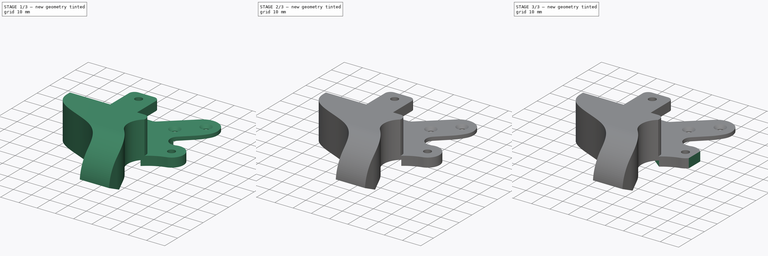
[diagram: build sequence overview — one tinted view per stage of 3, left to right]
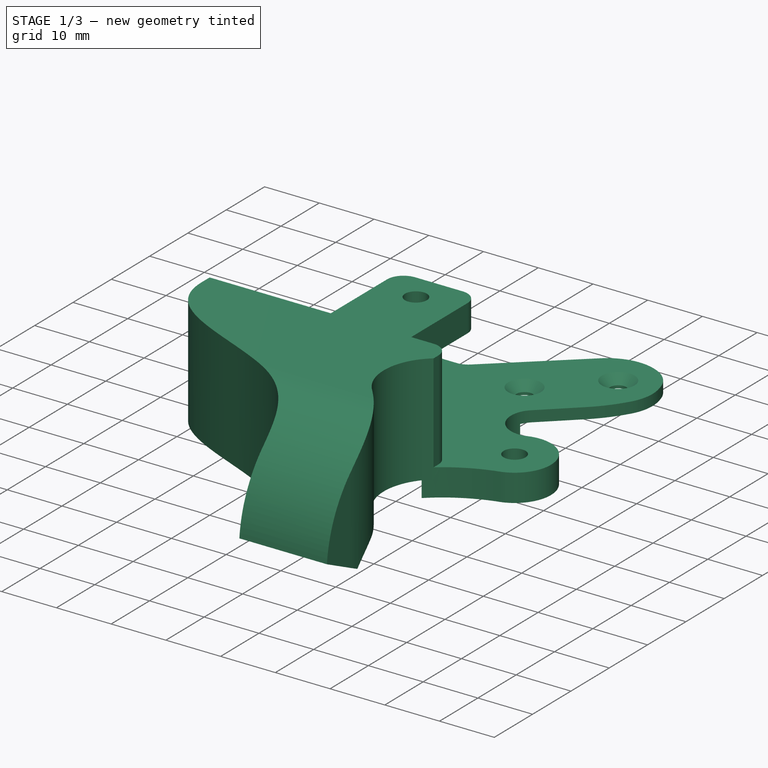
[diagram: stage 1 of 3 — iso view after this stage's code; geometry added in this stage tinted green]
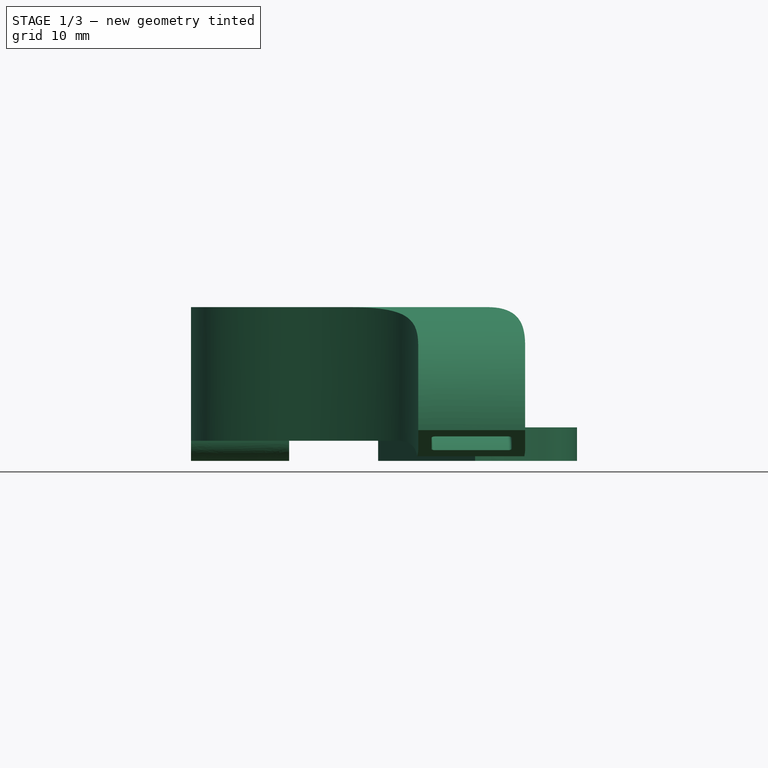
[diagram: stage 1 of 3 — front view after this stage's code; geometry added in this stage tinted green]
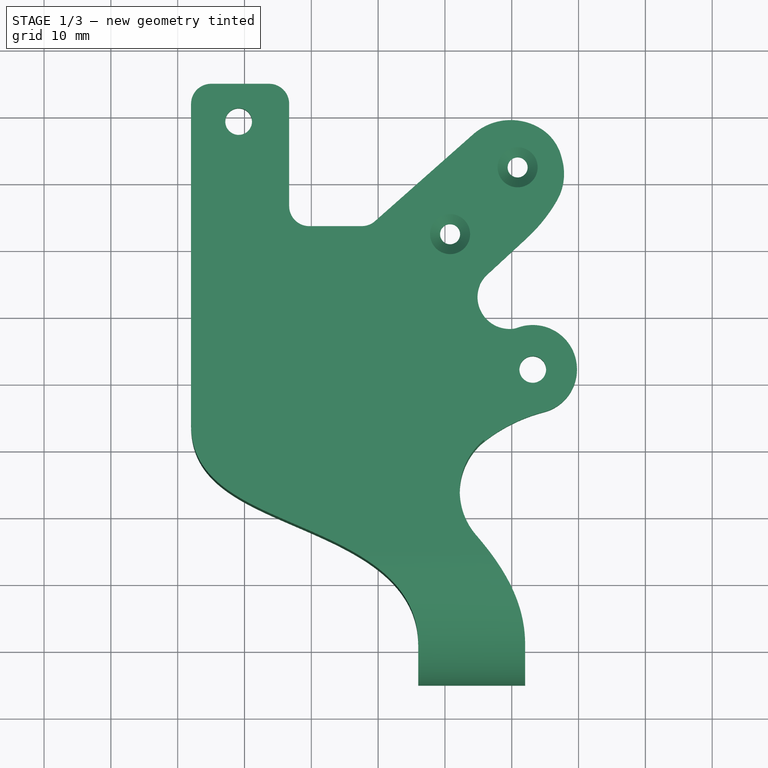
[diagram: stage 1 of 3 — top view after this stage's code; geometry added in this stage tinted green]
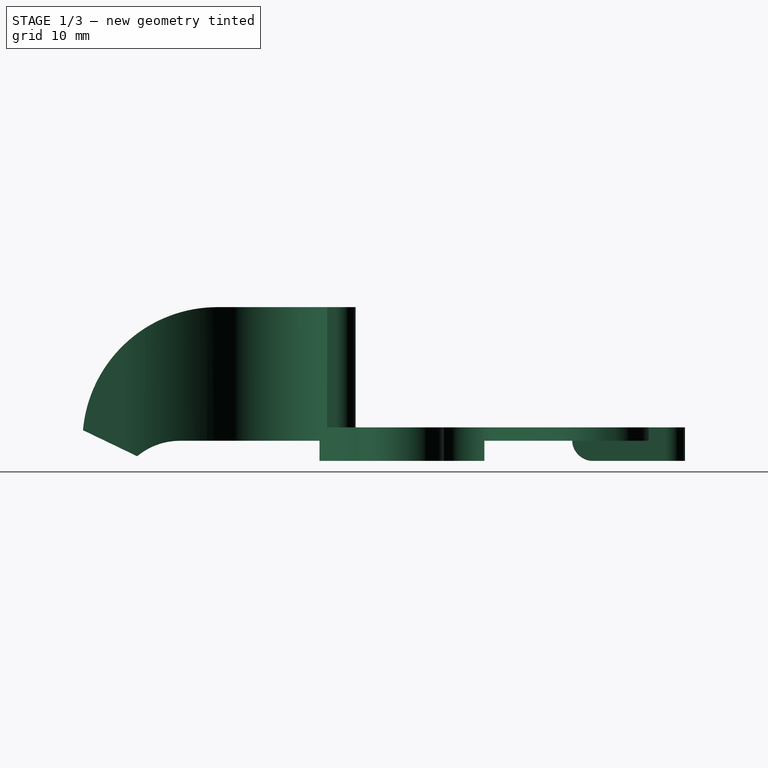
[diagram: stage 1 of 3 — right view after this stage's code; geometry added in this stage tinted green]
FCSTD DOCUMENT  (FreeCAD 0.22R37841 (Git))
Label: RightFanDuct
License: All rights reserved
LicenseURL: http://en.wikipedia.org/wiki/All_rights_reserved
objects: Sketcher::SketchObject×6, PartDesign::Pocket×4, PartDesign::Pad×2, Part::Feature×1, PartDesign::FeatureBase×1, PartDesign::Chamfer×1, PartDesign::Body×1
note: 23 computed .brp shape members not serialized (recipe doc carries the construction recipe); baked Part::Feature solids carry a one-line shape summary decoded from their .brp

FEATURE [Part::Feature] Part__Feature  label="Component2"
  Placement = pos=(80.0475,-0.284578,0.729524) rot=(0,0,1;0rad)
  shape: bbox 55.87 x 90.13 x 23.18 mm, 9816 faces (baked)
FEATURE [PartDesign::FeatureBase] BaseFeature
  BaseFeature = -> Part__Feature
  Suppressed = false
FEATURE [Sketcher::SketchObject] Sketch
  AttachmentSupport = -> [BaseFeature]
  FullyConstrained = false
  MapMode = 5
  Placement = pos=(-1e-16,-4e-16,-3) rot=(1,0,0;3.14159rad)
  sketch-geometry (18):
    g0: Circle CenterX=-20.8995 CenterY=-29.3636 CenterZ=0 NormalX=0 NormalY=0 NormalZ=1 AngleXU=0 Radius=2
    g1: Circle CenterX=-20.8995 CenterY=-29.3636 CenterZ=0 NormalX=0 NormalY=0 NormalZ=1 AngleXU=0 Radius=4
    g2: Circle CenterX=23.1398 CenterY=7.75784 CenterZ=0 NormalX=0 NormalY=0 NormalZ=1 AngleXU=0 Radius=2
    g3: Circle CenterX=23.1398 CenterY=7.75784 CenterZ=0 NormalX=0 NormalY=0 NormalZ=1 AngleXU=0 Radius=4
    g4: LineSegment StartX=-24.4502 StartY=-27.3136 StartZ=0 EndX=-24.4502 EndY=-31.4136 EndZ=0
    g5: LineSegment StartX=-24.4502 StartY=-31.4136 StartZ=0 EndX=-20.8995 EndY=-33.4636 EndZ=0
    g6: LineSegment StartX=-20.8995 StartY=-33.4636 StartZ=0 EndX=-17.3488 EndY=-31.4136 EndZ=0
    g7: LineSegment StartX=-17.3488 StartY=-31.4136 StartZ=0 EndX=-17.3488 EndY=-27.3136 EndZ=0
    g8: LineSegment StartX=-17.3488 StartY=-27.3136 StartZ=0 EndX=-20.8995 EndY=-25.2636 EndZ=0
    g9: LineSegment StartX=-20.8995 StartY=-25.2636 StartZ=0 EndX=-24.4502 EndY=-27.3136 EndZ=0
    g10: Circle CenterX=-20.8995 CenterY=-29.3636 CenterZ=0 NormalX=0 NormalY=0 NormalZ=1 AngleXU=0 Radius=4.1
    g11: LineSegment StartX=19.6757 StartY=9.75784 StartZ=0 EndX=19.6757 EndY=5.75784 EndZ=0
    g12: LineSegment StartX=19.6757 StartY=5.75784 StartZ=0 EndX=23.1398 EndY=3.75784 EndZ=0
    g13: LineSegment StartX=23.1398 StartY=3.75784 StartZ=0 EndX=26.6039 EndY=5.75784 EndZ=0
    g14: LineSegment StartX=26.6039 StartY=5.75784 StartZ=0 EndX=26.6039 EndY=9.75784 EndZ=0
    g15: LineSegment StartX=26.6039 StartY=9.75784 StartZ=0 EndX=23.1398 EndY=11.7578 EndZ=0
    g16: LineSegment StartX=23.1398 StartY=11.7578 StartZ=0 EndX=19.6757 EndY=9.75784 EndZ=0
    g17: Circle CenterX=23.1398 CenterY=7.75784 CenterZ=0 NormalX=0 NormalY=0 NormalZ=1 AngleXU=0 Radius=4
  constraints (36):
    c: Diameter(g0) = 4
    c: Radius(g1) = 4
    c: Coincident(g1,g0)
    c: Diameter(g2) = 4
    c: Radius(g3) = 4
    c: Coincident(g3,g2)
    c: Coincident(g4,g5)
    c: Coincident(g5,g6)
    c: Coincident(g6,g7)
    c: Coincident(g7,g8)
    c: Coincident(g8,g9)
    c: Coincident(g9,g4)
    c: Equal(g4, g5-g9) x5
    c: PointOnObject(g4,g10)
    c: PointOnObject(g5,g10)
    c: PointOnObject(g6,g10)
    c: PointOnObject(g7,g10)
    c: PointOnObject(g8,g10)
    c: PointOnObject(g9,g10)
    c: Radius(g10) = 4.1
    c: Coincident(g10,g0)
    c: Coincident(g11,g12)
    c: Coincident(g12,g13)
    c: Coincident(g13,g14)
    c: Coincident(g14,g15)
    c: Coincident(g15,g16)
    c: Coincident(g16,g11)
    c: Equal(g11, g12-g16) x5
    c: PointOnObject(g11,g17)
    c: PointOnObject(g12,g17)
    c: PointOnObject(g13,g17)
    c: PointOnObject(g14,g17)
    c: PointOnObject(g15,g17)
    c: PointOnObject(g16,g17)
    c: Radius(g17) = 4
    c: Coincident(g17,g2)
FEATURE [Sketcher::SketchObject] Sketch001
  AttachmentSupport = -> [BaseFeature]
  ExternalGeometry = -> [Sketch]
  FullyConstrained = false
  MapMode = 5
  Placement = pos=(-1e-16,-4e-16,-3) rot=(1,0,0;3.14159rad)
  sketch-geometry (2):
    g0: Circle CenterX=-20.8784 CenterY=-29.352 CenterZ=0 NormalX=0 NormalY=0 NormalZ=1 AngleXU=0 Radius=2
    g1: Circle CenterX=23.1398 CenterY=7.75718 CenterZ=0 NormalX=0 NormalY=0 NormalZ=1 AngleXU=0 Radius=2
  constraints (2):
    c: Diameter(g0) = 4
    c: Diameter(g1) = 4
FEATURE [Sketcher::SketchObject] Sketch002
  AttachmentSupport = -> [BaseFeature]
  FullyConstrained = false
  MapMode = 5
  Placement = pos=(-1e-16,-4e-16,-3) rot=(1,0,0;3.14159rad)
  sketch-geometry (8):
    g0: Circle CenterX=23.1396 CenterY=7.72909 CenterZ=0 NormalX=0 NormalY=0 NormalZ=1 AngleXU=0 Radius=1.38906
    g1: ArcOfCircle CenterX=23.1396 CenterY=7.72909 CenterZ=0 NormalX=0 NormalY=0 NormalZ=1 AngleXU=0 Radius=6.62085 StartAngle=4.3611 EndAngle=7.55831
    g2: ArcOfCircle CenterX=19.6808 CenterY=-3.10367 CenterZ=0 NormalX=0 NormalY=0 NormalZ=1 AngleXU=0 Radius=4.80765 StartAngle=1.60785 EndAngle=3.53802
    g3: LineSegment StartX=15.246 StartY=-4.96004 StartZ=0 EndX=0 EndY=-4.96004 EndZ=0
    g4: LineSegment StartX=0 StartY=-4.96004 StartZ=0 EndX=14.5094 EndY=19.7067 EndZ=0
    g5: LineSegment StartX=19.5027 StartY=1.70068 StartZ=0 EndX=19.6413 EndY=1.70583 EndZ=0
    g6: ArcOfCircle CenterX=19.7601 CenterY=-1.4923 CenterZ=0 NormalX=0 NormalY=0 NormalZ=1 AngleXU=0 Radius=3.20033 StartAngle=1.21951 EndAngle=1.6079
    g7: ArcOfCircle CenterX=30.968 CenterY=37.7991 CenterZ=0 NormalX=0 NormalY=0 NormalZ=1 AngleXU=0 Radius=24.4585 StartAngle=3.97424 EndAngle=4.46879
  constraints (10):
    c: Coincident(g1,g0)
    c: PointOnObject(g3,g-2)
    c: Horizontal(g3)
    c: Coincident(g4,g3)
    c: Coincident(g2,g3)
    c: Coincident(g2,g5)
    c: Tangent(g5,g6) = 1.5708
    c: Tangent(g1,g6) = 1.5708
    c: Coincident(g7,g4)
    c: Coincident(g1,g7)
FEATURE [PartDesign::Pad] Pad
  BaseFeature = -> BaseFeature
  Direction = (0,0,-1)
  Length = 5
  Length2 = 10
  Profile = -> Sketch002
  ReferenceAxis = -> Sketch002 [N_Axis]
  Reversed = true
  Suppressed = false
  Type = 0
FEATURE [PartDesign::Pocket] Pocket
  BaseFeature = -> Pad
  Direction = (0,0,1)
  Length = 5
  Length2 = 5
  Profile = -> Sketch001
  ReferenceAxis = -> Sketch001 [N_Axis]
  Suppressed = false
  Type = 1
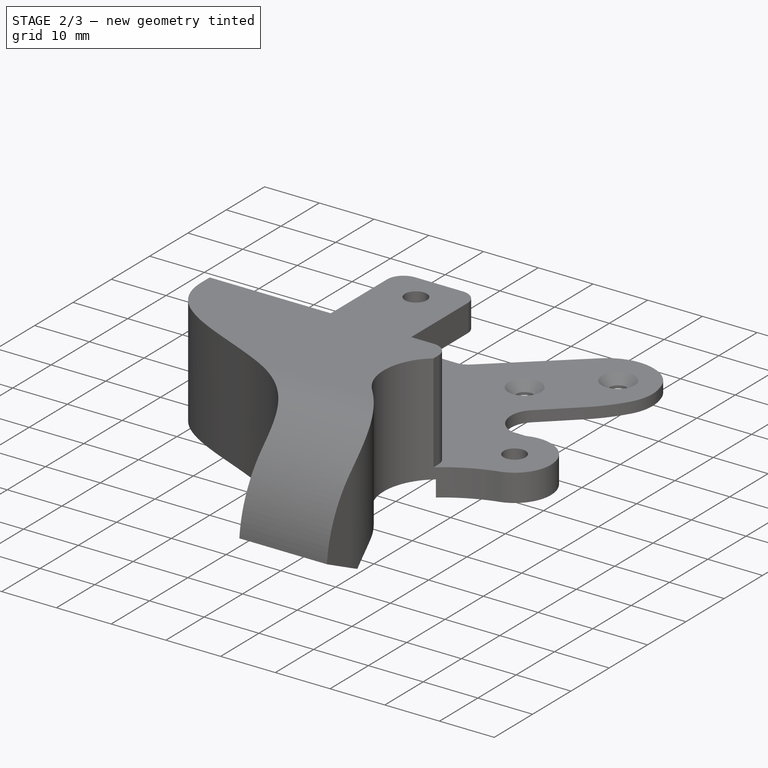
[diagram: stage 2 of 3 — iso view after this stage's code; geometry added in this stage tinted green]
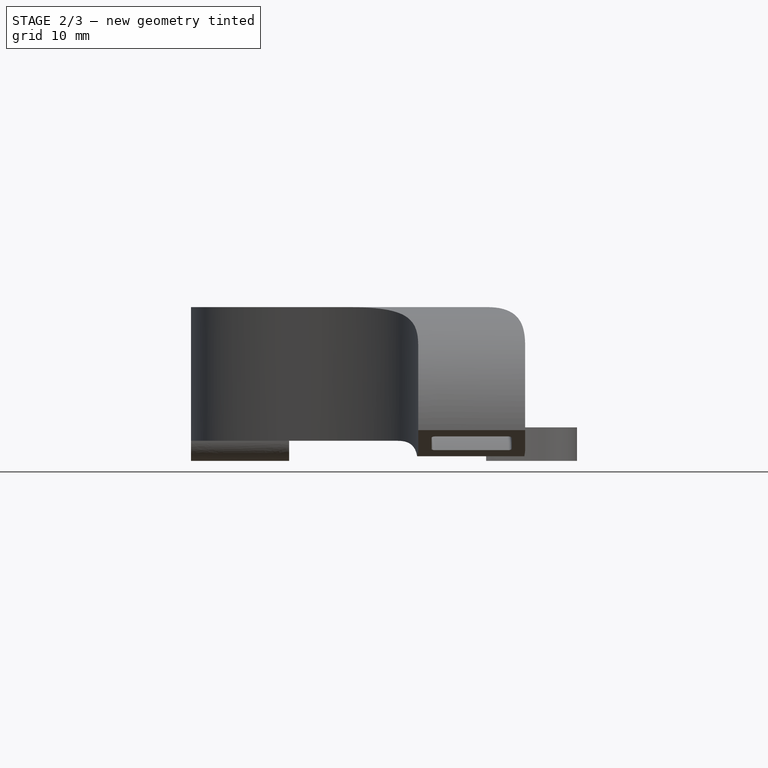
[diagram: stage 2 of 3 — front view after this stage's code; geometry added in this stage tinted green]
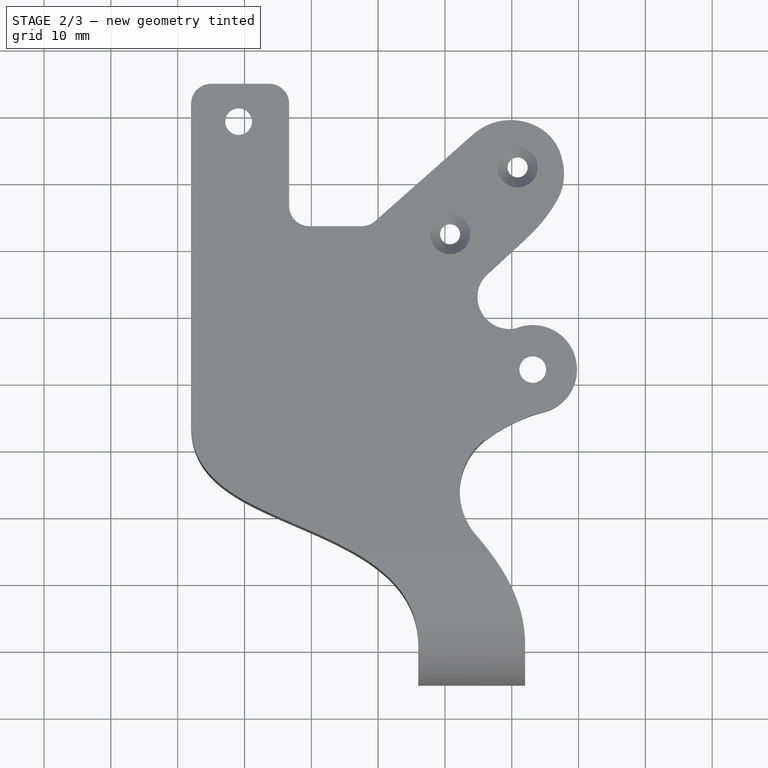
[diagram: stage 2 of 3 — top view after this stage's code; geometry added in this stage tinted green]
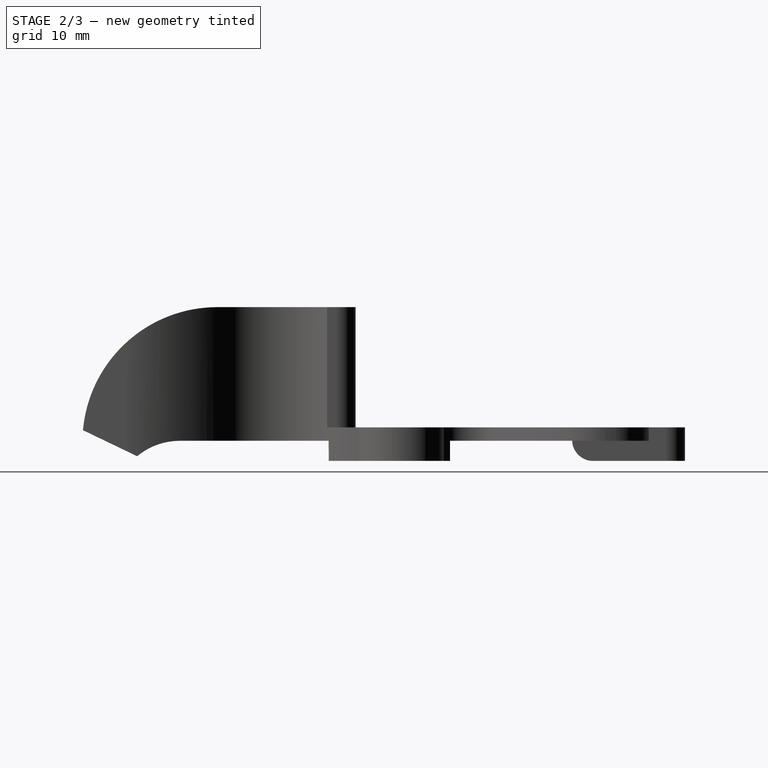
[diagram: stage 2 of 3 — right view after this stage's code; geometry added in this stage tinted green]
FEATURE [PartDesign::Pocket] Pocket001
  BaseFeature = -> Pocket
  Direction = (0,0,1)
  Length = 3
  Length2 = 5
  Profile = -> Sketch
  ReferenceAxis = -> Sketch [N_Axis]
  Suppressed = false
  Type = 0
FEATURE [Sketcher::SketchObject] Sketch003
  AttachmentSupport = -> [Pad]
  FullyConstrained = false
  MapMode = 5
  Placement = pos=(0,0,-3) rot=(1,0,0;3.14159rad)
  sketch-geometry (4):
    g0: LineSegment StartX=16.1617 StartY=23.5954 StartZ=0 EndX=-2.17653 EndY=23.5954 EndZ=0
    g1: LineSegment StartX=-2.17653 StartY=23.5954 StartZ=0 EndX=-2.17653 EndY=-6.45273 EndZ=0
    g2: LineSegment StartX=-2.17653 StartY=-6.45273 StartZ=0 EndX=16.1617 EndY=-6.45273 EndZ=0
    g3: LineSegment StartX=16.1617 StartY=-6.45273 StartZ=0 EndX=16.1617 EndY=23.5954 EndZ=0
  constraints (8):
    c: Coincident(g0,g1)
    c: Coincident(g1,g2)
    c: Coincident(g2,g3)
    c: Coincident(g3,g0)
    c: Horizontal(g0)
    c: Horizontal(g2)
    c: Vertical(g1)
    c: Vertical(g3)
FEATURE [PartDesign::Pocket] Pocket002
  BaseFeature = -> Pocket001
  Direction = (0,0,1)
  Length = 3
  Length2 = 5
  Profile = -> Sketch003
  ReferenceAxis = -> Sketch003 [N_Axis]
  Suppressed = false
  Type = 0
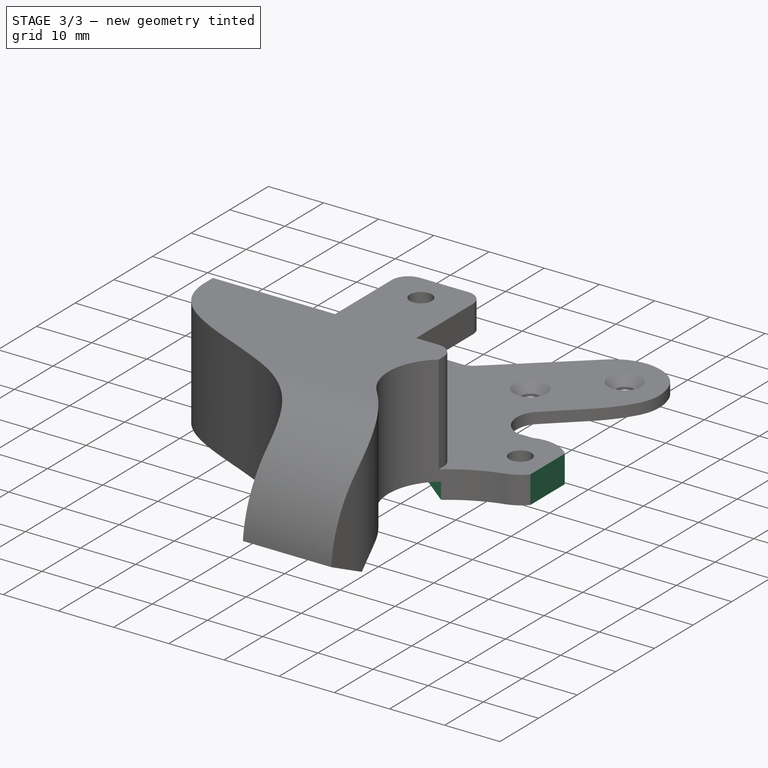
[diagram: stage 3 of 3 — iso view after this stage's code; geometry added in this stage tinted green]
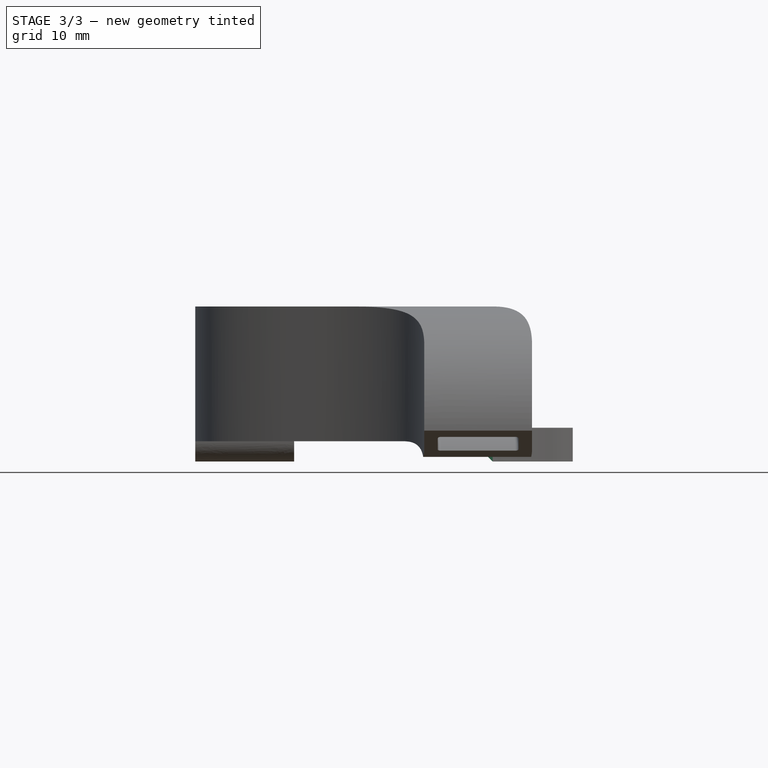
[diagram: stage 3 of 3 — front view after this stage's code; geometry added in this stage tinted green]
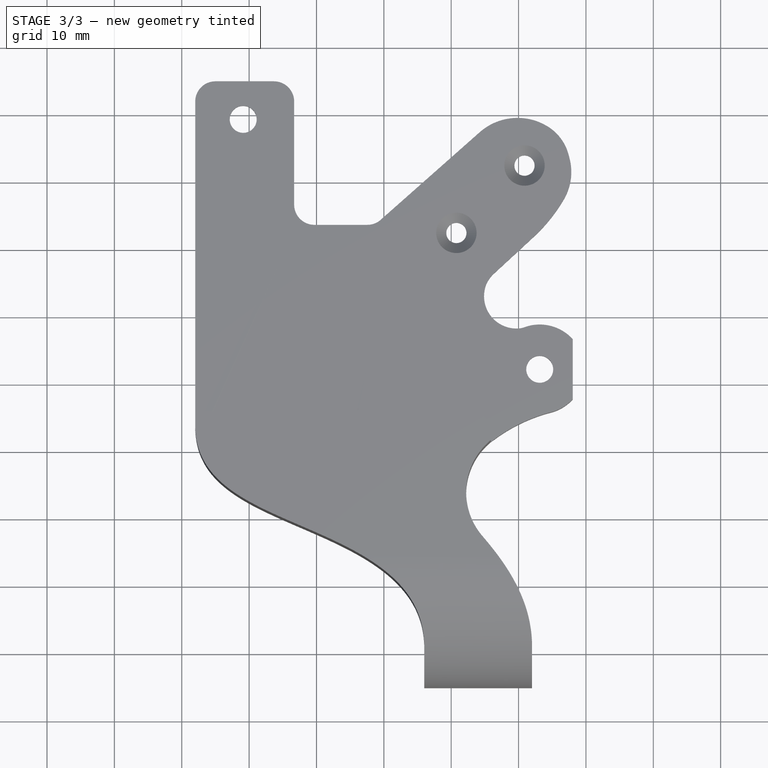
[diagram: stage 3 of 3 — top view after this stage's code; geometry added in this stage tinted green]
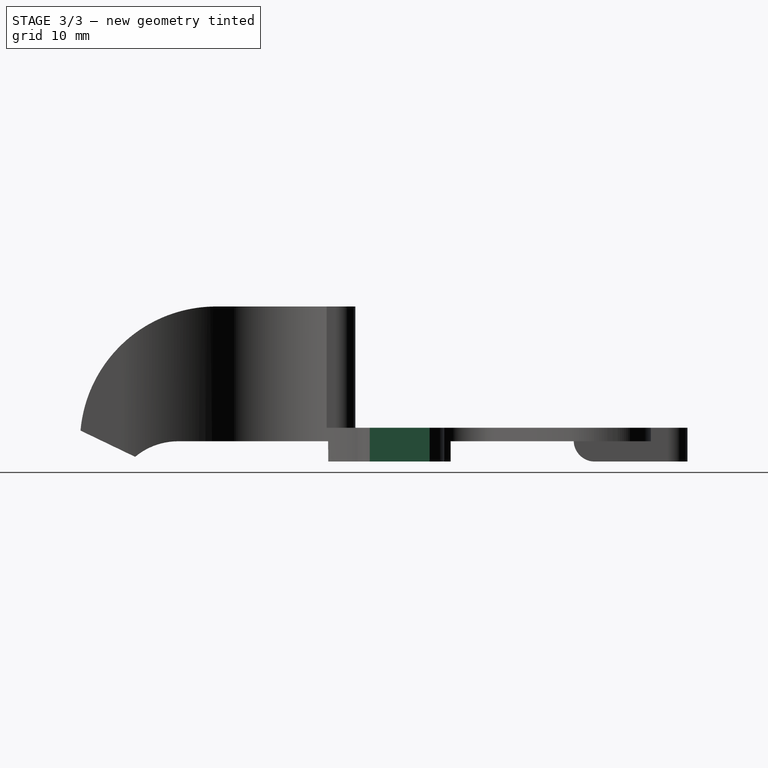
[diagram: stage 3 of 3 — right view after this stage's code; geometry added in this stage tinted green]
FEATURE [Sketcher::SketchObject] Sketch004
  AttachmentSupport = -> [Pocket002]
  FullyConstrained = false
  MapMode = 5
  Placement = pos=(16.1617,0,0) rot=(0.57735,-0.57735,-0.57735;2.0944rad)
  sketch-geometry (4):
    g0: LineSegment StartX=0.183049 StartY=0 StartZ=0 EndX=0.183049 EndY=-2.99202 EndZ=0
    g1: LineSegment StartX=0.183049 StartY=-2.99202 StartZ=0 EndX=18.3259 EndY=-2.99202 EndZ=0
    g2: LineSegment StartX=18.3259 StartY=-2.99202 StartZ=0 EndX=18.3259 EndY=0 EndZ=0
    g3: LineSegment StartX=18.3259 StartY=0 StartZ=0 EndX=0.183049 EndY=0 EndZ=0
  constraints (9):
    c: Coincident(g0,g1)
    c: Coincident(g1,g2)
    c: Coincident(g2,g3)
    c: Coincident(g3,g0)
    c: Vertical(g0)
    c: Vertical(g2)
    c: Horizontal(g1)
    c: Horizontal(g3)
    c: PointOnObject(g0,g-1)
FEATURE [PartDesign::Pad] Pad001
  BaseFeature = -> Pocket002
  Direction = (-1,0,0)
  Length = 3
  Length2 = 10
  Profile = -> Sketch004
  ReferenceAxis = -> Sketch004 [N_Axis]
  Suppressed = false
  Type = 0
FEATURE [PartDesign::Chamfer] Chamfer
  Angle = 45
  Base = -> Pad001 [Edge1552]
  BaseFeature = -> Pad001
  ChamferType = 0
  FlipDirection = false
  Size = 2.98
  Size2 = 1
  SupportTransform = false
  Suppressed = false
  UseAllEdges = false
FEATURE [Sketcher::SketchObject] Sketch005
  AttachmentOffset = pos=(0,0,6) rot=(0,0,1;0rad)
  AttachmentSupport = -> [Chamfer]
  FullyConstrained = false
  MapMode = 5
  Placement = pos=(0,0,-6) rot=(1,0,0;3.14159rad)
  sketch-geometry (4):
    g0: LineSegment StartX=54.1699 StartY=23.4239 StartZ=0 EndX=28.0456 EndY=23.4239 EndZ=0
    g1: LineSegment StartX=28.0456 StartY=23.4239 StartZ=0 EndX=28.0456 EndY=-13.6647 EndZ=0
    g2: LineSegment StartX=28.0456 StartY=-13.6647 StartZ=0 EndX=54.1699 EndY=-13.6647 EndZ=0
    g3: LineSegment StartX=54.1699 StartY=-13.6647 StartZ=0 EndX=54.1699 EndY=23.4239 EndZ=0
  constraints (8):
    c: Coincident(g0,g1)
    c: Coincident(g1,g2)
    c: Coincident(g2,g3)
    c: Coincident(g3,g0)
    c: Horizontal(g0)
    c: Horizontal(g2)
    c: Vertical(g1)
    c: Vertical(g3)
FEATURE [PartDesign::Pocket] Pocket003
  BaseFeature = -> Chamfer
  Direction = (0,0,1)
  Length = 5
  Length2 = 5
  Profile = -> Sketch005
  ReferenceAxis = -> Sketch005 [N_Axis]
  Suppressed = false
  Type = 1
FEATURE [PartDesign::Body] Body
  AllowCompound = false
  BaseFeature = -> Part__Feature
  Group = -> [BaseFeature,Sketch002,Sketch,Sketch001,Pad,Pocket,Pocket001,Sketch003,Pocket002,Sketch004,Pad001,Chamfer,Sketch005,Pocket003]
  Origin = -> Origin
  Tip = -> Pocket003
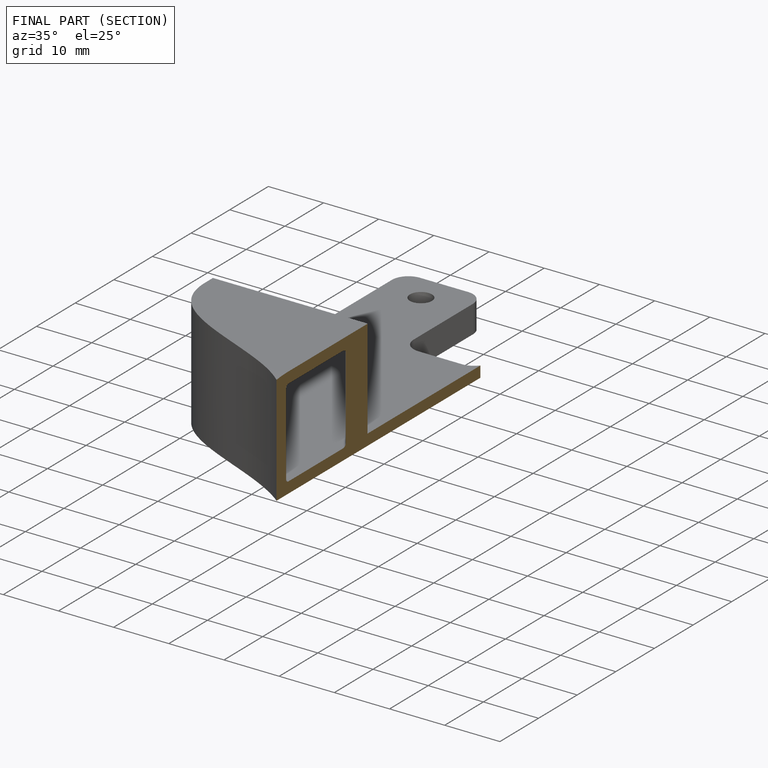
[diagram: finished part — half-section view (interior)]
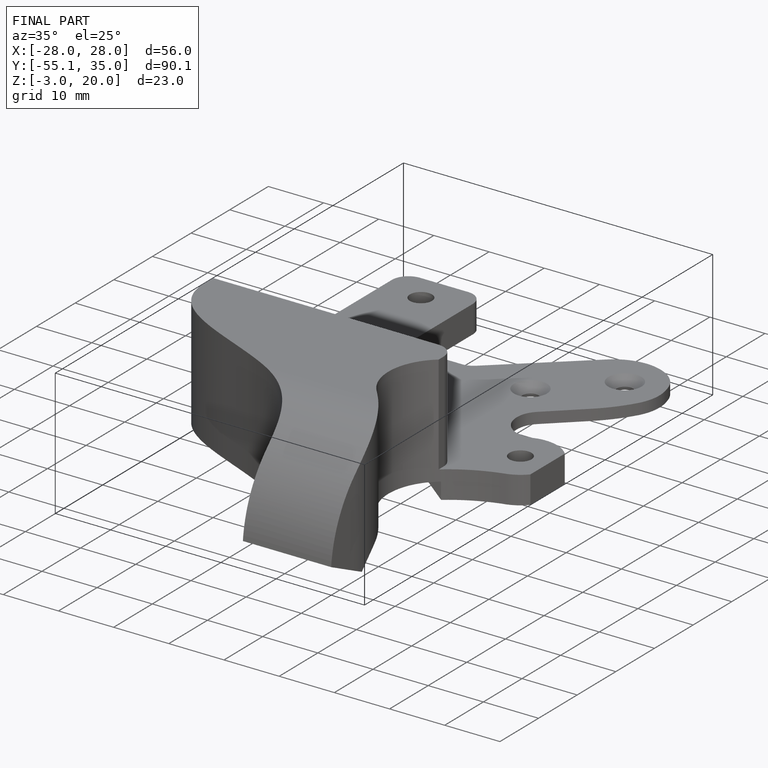
[diagram: finished part — iso view with bounding-box wireframe]
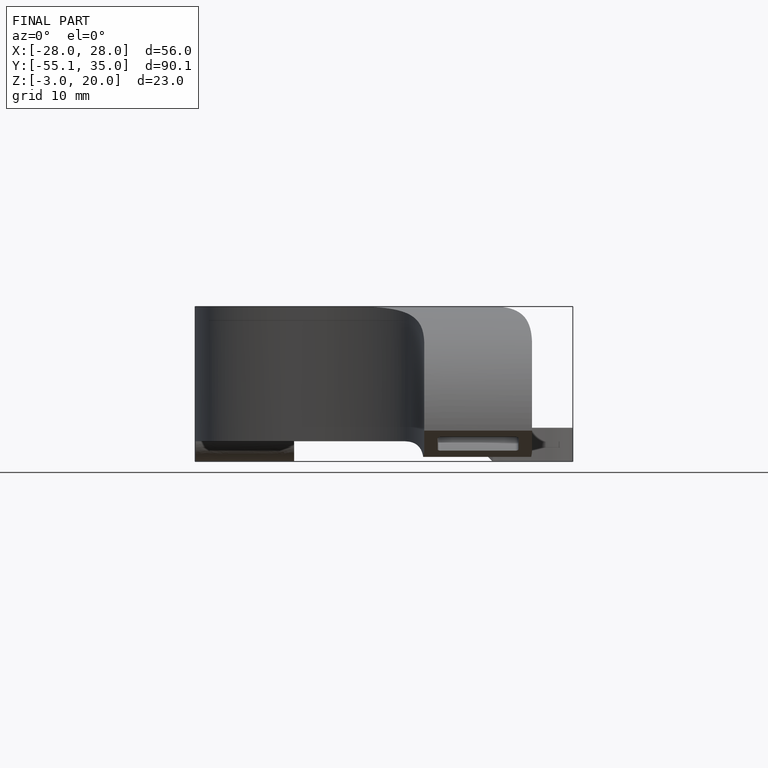
[diagram: finished part — front view with bounding-box wireframe]
